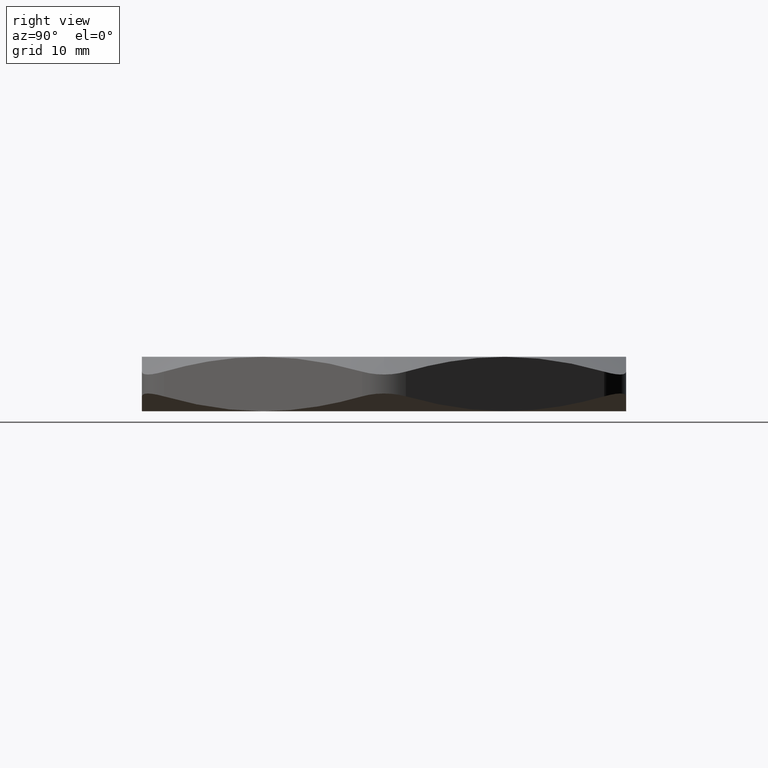
[diagram: clean part render]
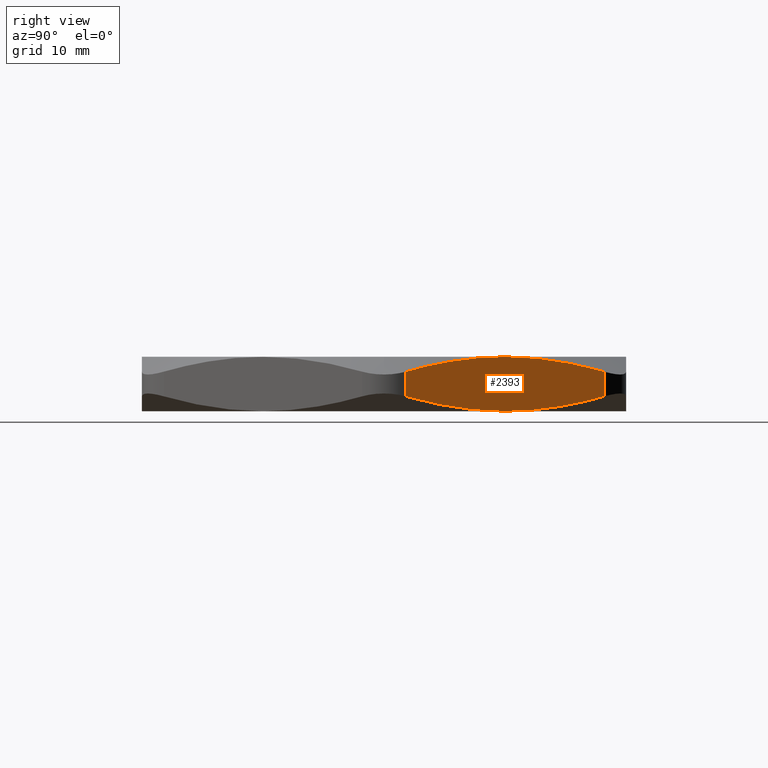
[diagram: same view with one face highlighted and labeled with its STEP entity id]
A machine part, right view. The second image highlights one B-rep face of the part: STEP entity #2393.
In plain terms, the highlighted planar face has unit normal (-0.866, -0.5, 0).
Its self-contained STEP definition (entity closure, byte-faithful):
#286 = CARTESIAN_POINT ( 'NONE',  ( 1.467834459632706000, 0.2176361388157450100, 0.2518453892615746300 ) ) ;
#287 = CARTESIAN_POINT ( 'NONE',  ( 1.521317959314663700, 0.1250000000000009200, 0.2254501298317905000 ) ) ;
#291 = B_SPLINE_CURVE_WITH_KNOTS ( 'NONE', 3,
 ( #287, #286, #346, #345, #344, #343 ),
 .UNSPECIFIED., .F., .F.,
 ( 4, 2, 4 ),
 ( 0.003768952153750668300, 0.01212300176956830600, 0.02047705138538594500 ),
 .UNSPECIFIED. ) ;
#301 = CARTESIAN_POINT ( 'NONE',  ( 1.521317959314663700, 0.1250000000000009200, 0.2254501298317905000 ) ) ;
#308 = CARTESIAN_POINT ( 'NONE',  ( 1.195115057222525300, 0.6899999999999998400, 0.3100000000000000000 ) ) ;
#343 = CARTESIAN_POINT ( 'NONE',  ( 1.195115057222525300, 0.6899999999999998400, 0.3100000000000000000 ) ) ;
#344 = CARTESIAN_POINT ( 'NONE',  ( 1.250494275335839500, 0.5940803805443016800, 0.3099999999999998300 ) ) ;
#345 = CARTESIAN_POINT ( 'NONE',  ( 1.305314306591482300, 0.4991293011370142600, 0.3022140957571457500 ) ) ;
#346 = CARTESIAN_POINT ( 'NONE',  ( 1.413982410776075000, 0.3109106235271125200, 0.2731091107386488500 ) ) ;
#811 = PLANE ( 'NONE',  #873 ) ;
#812 = FACE_OUTER_BOUND ( 'NONE', #2559, .T. ) ;
#845 = CARTESIAN_POINT ( 'NONE',  ( 0.8689121551304089800, 1.254999999999962100, 0.2254501298318009900 ) ) ;
#846 = CARTESIAN_POINT ( 'NONE',  ( 0.9222822964244470300, 1.162560203671558500, 0.2517894444547654800 ) ) ;
#847 = CARTESIAN_POINT ( 'NONE',  ( 0.9760731780192321000, 1.069391663765469900, 0.2730486519549051300 ) ) ;
#848 = CARTESIAN_POINT ( 'NONE',  ( 1.057590622839095400, 0.9281993076342737200, 0.2949023157344917200 ) ) ;
#849 = CARTESIAN_POINT ( 'NONE',  ( 1.084901594054462000, 0.8808953178852073600, 0.3005147175850688100 ) ) ;
#850 = CARTESIAN_POINT ( 'NONE',  ( 1.126096183324484500, 0.8095441962725965500, 0.3061788010844173100 ) ) ;
#851 = CARTESIAN_POINT ( 'NONE',  ( 1.139865678699431200, 0.7856947306886040700, 0.3076084240357874200 ) ) ;
#852 = CARTESIAN_POINT ( 'NONE',  ( 1.167483135742159600, 0.7378598919147479900, 0.3095202513707782100 ) ) ;
#853 = CARTESIAN_POINT ( 'NONE',  ( 1.181328527765493000, 0.7138789694796259200, 0.3099999999999998300 ) ) ;
#854 = CARTESIAN_POINT ( 'NONE',  ( 1.195115057222525300, 0.6899999999999998400, 0.3100000000000000000 ) ) ;
#858 = B_SPLINE_CURVE_WITH_KNOTS ( 'NONE', 3,
 ( #854, #853, #852, #851, #850, #849, #848, #847, #846, #845 ),
 .UNSPECIFIED., .F., .F.,
 ( 4, 2, 2, 2, 4 ),
 ( 0.02047705138538594500, 0.02255677289532714200, 0.02463649440526833800, 0.02879593742515072800, 0.03711482346491550700 ),
 .UNSPECIFIED. ) ;
#870 = DIRECTION ( 'NONE',  ( 0.4999999999999998900, -0.8660254037844386000, 0.0000000000000000000 ) ) ;
#871 = DIRECTION ( 'NONE',  ( -0.8660254037844387100, -0.4999999999999999400, 0.0000000000000000000 ) ) ;
#872 = CARTESIAN_POINT ( 'NONE',  ( 1.593486742963367000, 8.009114893943244900E-016, 0.3100000000000000000 ) ) ;
#873 = AXIS2_PLACEMENT_3D ( 'NONE', #872, #871, #870 ) ;
#879 = CARTESIAN_POINT ( 'NONE',  ( 1.521317959314663700, 0.1250000000000008900, 0.08454987016820945900 ) ) ;
#880 = CARTESIAN_POINT ( 'NONE',  ( 1.467947818020622700, 0.2174397963284102300, 0.05821055554524192500 ) ) ;
#881 = CARTESIAN_POINT ( 'NONE',  ( 1.414156936425834000, 0.3106083362345054600, 0.03695134804509978700 ) ) ;
#882 = CARTESIAN_POINT ( 'NONE',  ( 1.332639491605965200, 0.4518006923657106300, 0.01509768426551034800 ) ) ;
#883 = CARTESIAN_POINT ( 'NONE',  ( 1.305328520390596700, 0.4991046821147794900, 0.009485282414932317100 ) ) ;
#884 = CARTESIAN_POINT ( 'NONE',  ( 1.264133931120572200, 0.5704558037273953500, 0.003821198915583011400 ) ) ;
#885 = CARTESIAN_POINT ( 'NONE',  ( 1.250364435745623400, 0.5943052693113898300, 0.002391575964212875300 ) ) ;
#886 = CARTESIAN_POINT ( 'NONE',  ( 1.222746978702893700, 0.6421401080852486800, 0.0004797486292219296600 ) ) ;
#887 = CARTESIAN_POINT ( 'NONE',  ( 1.208901586679559600, 0.6661210305203726400, 1.191626403486366700E-016 ) ) ;
#888 = CARTESIAN_POINT ( 'NONE',  ( 1.195115057222525300, 0.6899999999999998400, 0.0000000000000000000 ) ) ;
#891 = CARTESIAN_POINT ( 'NONE',  ( 1.195115057222525300, 0.6899999999999998400, 0.0000000000000000000 ) ) ;
#892 = B_SPLINE_CURVE_WITH_KNOTS ( 'NONE', 3,
 ( #888, #887, #886, #885, #884, #883, #882, #881, #880, #879 ),
 .UNSPECIFIED., .F., .F.,
 ( 4, 2, 2, 2, 4 ),
 ( 0.02047705138538596900, 0.02255677289532730500, 0.02463649440526863600, 0.02879593742515130400, 0.03711482346491664500 ),
 .UNSPECIFIED. ) ;
#906 = CARTESIAN_POINT ( 'NONE',  ( 0.8689121551304089800, 1.254999999999962100, 0.2254501298318009900 ) ) ;
#907 = DIRECTION ( 'NONE',  ( 0.0000000000000000000, 0.0000000000000000000, 1.000000000000000000 ) ) ;
#908 = VECTOR ( 'NONE', #907, 39.37007874015748100 ) ;
#909 = CARTESIAN_POINT ( 'NONE',  ( 0.8689121551303871100, 1.255000000000000100, 0.3100000000000000000 ) ) ;
#918 = LINE ( 'NONE', #909, #908 ) ;
#936 = CARTESIAN_POINT ( 'NONE',  ( 1.521317959314663700, 0.1250000000000008900, 0.08454987016820945900 ) ) ;
#1241 = CARTESIAN_POINT ( 'NONE',  ( 1.195115057222525300, 0.6899999999999998400, 0.0000000000000000000 ) ) ;
#1242 = CARTESIAN_POINT ( 'NONE',  ( 1.139735839109211600, 0.7859196194556985500, 1.152498372327111000E-016 ) ) ;
#1243 = CARTESIAN_POINT ( 'NONE',  ( 1.084915807853569000, 0.8808706988629857500, 0.007785904242854375200 ) ) ;
#1244 = CARTESIAN_POINT ( 'NONE',  ( 0.9762477036689765100, 1.069089376472888400, 0.03689088926135141600 ) ) ;
#1245 = CARTESIAN_POINT ( 'NONE',  ( 0.9223956548123444200, 1.162363861184255500, 0.05815461073842530200 ) ) ;
#1246 = CARTESIAN_POINT ( 'NONE',  ( 0.8689121551303872200, 1.255000000000000100, 0.08454987016820966800 ) ) ;
#1251 = B_SPLINE_CURVE_WITH_KNOTS ( 'NONE', 3,
 ( #1246, #1245, #1244, #1243, #1242, #1241 ),
 .UNSPECIFIED., .F., .F.,
 ( 4, 2, 4 ),
 ( 0.003768952153750664000, 0.01212300176956831700, 0.02047705138538596900 ),
 .UNSPECIFIED. ) ;
#1252 = DIRECTION ( 'NONE',  ( 0.0000000000000000000, 0.0000000000000000000, -1.000000000000000000 ) ) ;
#1253 = VECTOR ( 'NONE', #1252, 39.37007874015748100 ) ;
#1254 = CARTESIAN_POINT ( 'NONE',  ( 1.521317959314663700, 0.1250000000000009400, 0.3100000000000000000 ) ) ;
#1255 = LINE ( 'NONE', #1254, #1253 ) ;
#1258 = CARTESIAN_POINT ( 'NONE',  ( 0.8689121551303872200, 1.255000000000000100, 0.08454987016820966800 ) ) ;
#2129 = VERTEX_POINT ( 'NONE', #308 ) ;
#2135 = VERTEX_POINT ( 'NONE', #301 ) ;
#2137 = EDGE_CURVE ( 'NONE', #2135, #2129, #291, .T. ) ;
#2385 = ORIENTED_EDGE ( 'NONE', *, *, #2137, .F. ) ;
#2393 = ADVANCED_FACE ( 'NONE', ( #812 ), #811, .F. ) ;
#2403 = ORIENTED_EDGE ( 'NONE', *, *, #2404, .F. ) ;
#2404 = EDGE_CURVE ( 'NONE', #2129, #2433, #858, .T. ) ;
#2414 = EDGE_CURVE ( 'NONE', #2415, #2422, #892, .T. ) ;
#2415 = VERTEX_POINT ( 'NONE', #891 ) ;
#2416 = ORIENTED_EDGE ( 'NONE', *, *, #2561, .F. ) ;
#2422 = VERTEX_POINT ( 'NONE', #936 ) ;
#2423 = ORIENTED_EDGE ( 'NONE', *, *, #2414, .F. ) ;
#2431 = ORIENTED_EDGE ( 'NONE', *, *, #2432, .T. ) ;
#2432 = EDGE_CURVE ( 'NONE', #2558, #2433, #918, .T. ) ;
#2433 = VERTEX_POINT ( 'NONE', #906 ) ;
#2557 = ORIENTED_EDGE ( 'NONE', *, *, #2560, .T. ) ;
#2558 = VERTEX_POINT ( 'NONE', #1258 ) ;
#2559 = EDGE_LOOP ( 'NONE', ( #2385, #2557, #2423, #2416, #2431, #2403 ) ) ;
#2560 = EDGE_CURVE ( 'NONE', #2135, #2422, #1255, .T. ) ;
#2561 = EDGE_CURVE ( 'NONE', #2558, #2415, #1251, .T. ) ;